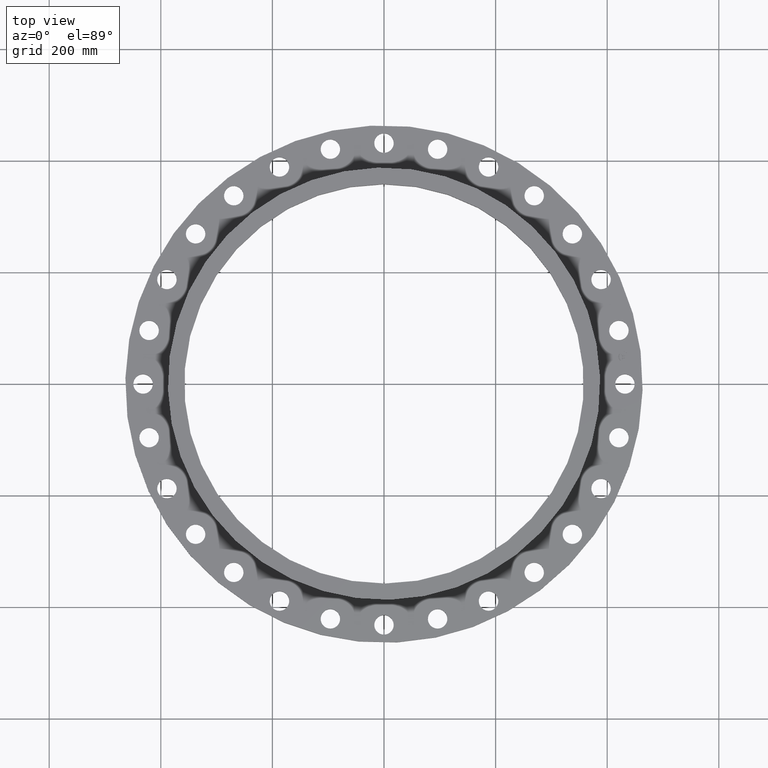
[diagram: clean part render]
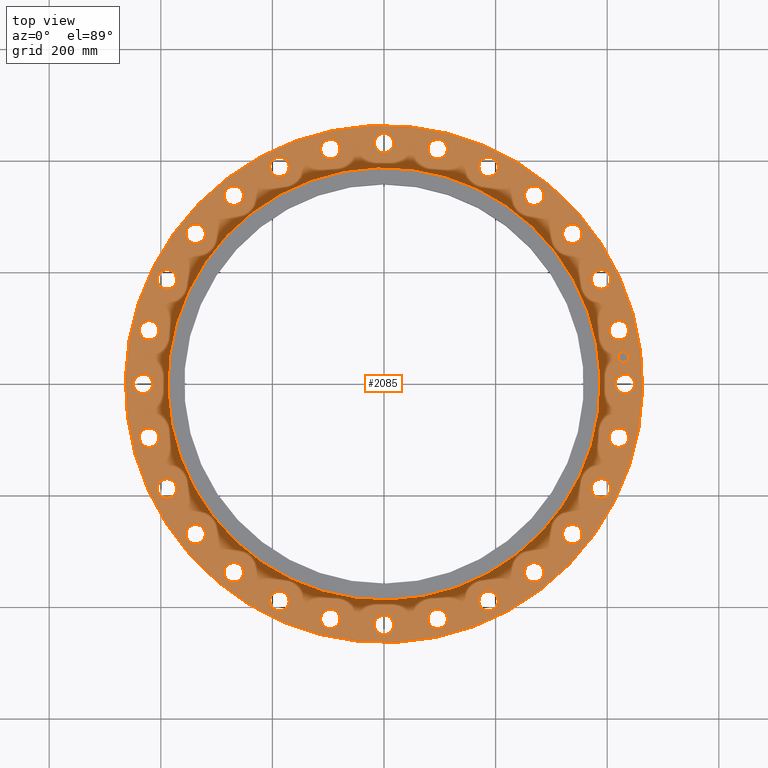
[diagram: same view with one face highlighted and labeled with its STEP entity id]
A machine part, top view. The second image highlights one B-rep face of the part: STEP entity #2085.
In plain terms, the highlighted planar face has unit normal (0, 0, 1).
Its self-contained STEP definition (entity closure, byte-faithful):
#65=AXIS2_PLACEMENT_3D('Circle Axis2P3D',#63,#64,$) ;
#82=AXIS2_PLACEMENT_3D('Circle Axis2P3D',#80,#81,$) ;
#108=AXIS2_PLACEMENT_3D('Circle Axis2P3D',#106,#107,$) ;
#134=AXIS2_PLACEMENT_3D('Circle Axis2P3D',#132,#133,$) ;
#255=AXIS2_PLACEMENT_3D('Circle Axis2P3D',#253,#254,$) ;
#267=AXIS2_PLACEMENT_3D('Circle Axis2P3D',#265,#266,$) ;
#802=AXIS2_PLACEMENT_3D('Circle Axis2P3D',#800,#801,$) ;
#814=AXIS2_PLACEMENT_3D('Circle Axis2P3D',#812,#813,$) ;
#845=AXIS2_PLACEMENT_3D('Circle Axis2P3D',#843,#844,$) ;
#857=AXIS2_PLACEMENT_3D('Circle Axis2P3D',#855,#856,$) ;
#888=AXIS2_PLACEMENT_3D('Circle Axis2P3D',#886,#887,$) ;
#900=AXIS2_PLACEMENT_3D('Circle Axis2P3D',#898,#899,$) ;
#931=AXIS2_PLACEMENT_3D('Circle Axis2P3D',#929,#930,$) ;
#943=AXIS2_PLACEMENT_3D('Circle Axis2P3D',#941,#942,$) ;
#974=AXIS2_PLACEMENT_3D('Circle Axis2P3D',#972,#973,$) ;
#986=AXIS2_PLACEMENT_3D('Circle Axis2P3D',#984,#985,$) ;
#1017=AXIS2_PLACEMENT_3D('Circle Axis2P3D',#1015,#1016,$) ;
#1029=AXIS2_PLACEMENT_3D('Circle Axis2P3D',#1027,#1028,$) ;
#1060=AXIS2_PLACEMENT_3D('Circle Axis2P3D',#1058,#1059,$) ;
#1072=AXIS2_PLACEMENT_3D('Circle Axis2P3D',#1070,#1071,$) ;
#1103=AXIS2_PLACEMENT_3D('Circle Axis2P3D',#1101,#1102,$) ;
#1115=AXIS2_PLACEMENT_3D('Circle Axis2P3D',#1113,#1114,$) ;
#1146=AXIS2_PLACEMENT_3D('Circle Axis2P3D',#1144,#1145,$) ;
#1158=AXIS2_PLACEMENT_3D('Circle Axis2P3D',#1156,#1157,$) ;
#1189=AXIS2_PLACEMENT_3D('Circle Axis2P3D',#1187,#1188,$) ;
#1201=AXIS2_PLACEMENT_3D('Circle Axis2P3D',#1199,#1200,$) ;
#1232=AXIS2_PLACEMENT_3D('Circle Axis2P3D',#1230,#1231,$) ;
#1244=AXIS2_PLACEMENT_3D('Circle Axis2P3D',#1242,#1243,$) ;
#1275=AXIS2_PLACEMENT_3D('Circle Axis2P3D',#1273,#1274,$) ;
#1287=AXIS2_PLACEMENT_3D('Circle Axis2P3D',#1285,#1286,$) ;
#1318=AXIS2_PLACEMENT_3D('Circle Axis2P3D',#1316,#1317,$) ;
#1330=AXIS2_PLACEMENT_3D('Circle Axis2P3D',#1328,#1329,$) ;
#1361=AXIS2_PLACEMENT_3D('Circle Axis2P3D',#1359,#1360,$) ;
#1373=AXIS2_PLACEMENT_3D('Circle Axis2P3D',#1371,#1372,$) ;
#1404=AXIS2_PLACEMENT_3D('Circle Axis2P3D',#1402,#1403,$) ;
#1416=AXIS2_PLACEMENT_3D('Circle Axis2P3D',#1414,#1415,$) ;
#1447=AXIS2_PLACEMENT_3D('Circle Axis2P3D',#1445,#1446,$) ;
#1459=AXIS2_PLACEMENT_3D('Circle Axis2P3D',#1457,#1458,$) ;
#1490=AXIS2_PLACEMENT_3D('Circle Axis2P3D',#1488,#1489,$) ;
#1502=AXIS2_PLACEMENT_3D('Circle Axis2P3D',#1500,#1501,$) ;
#1533=AXIS2_PLACEMENT_3D('Circle Axis2P3D',#1531,#1532,$) ;
#1545=AXIS2_PLACEMENT_3D('Circle Axis2P3D',#1543,#1544,$) ;
#1576=AXIS2_PLACEMENT_3D('Circle Axis2P3D',#1574,#1575,$) ;
#1588=AXIS2_PLACEMENT_3D('Circle Axis2P3D',#1586,#1587,$) ;
#1619=AXIS2_PLACEMENT_3D('Circle Axis2P3D',#1617,#1618,$) ;
#1631=AXIS2_PLACEMENT_3D('Circle Axis2P3D',#1629,#1630,$) ;
#1662=AXIS2_PLACEMENT_3D('Circle Axis2P3D',#1660,#1661,$) ;
#1674=AXIS2_PLACEMENT_3D('Circle Axis2P3D',#1672,#1673,$) ;
#1705=AXIS2_PLACEMENT_3D('Circle Axis2P3D',#1703,#1704,$) ;
#1717=AXIS2_PLACEMENT_3D('Circle Axis2P3D',#1715,#1716,$) ;
#1748=AXIS2_PLACEMENT_3D('Circle Axis2P3D',#1746,#1747,$) ;
#1760=AXIS2_PLACEMENT_3D('Circle Axis2P3D',#1758,#1759,$) ;
#1791=AXIS2_PLACEMENT_3D('Circle Axis2P3D',#1789,#1790,$) ;
#1803=AXIS2_PLACEMENT_3D('Circle Axis2P3D',#1801,#1802,$) ;
#1834=AXIS2_PLACEMENT_3D('Circle Axis2P3D',#1832,#1833,$) ;
#1846=AXIS2_PLACEMENT_3D('Circle Axis2P3D',#1844,#1845,$) ;
#1877=AXIS2_PLACEMENT_3D('Circle Axis2P3D',#1875,#1876,$) ;
#1889=AXIS2_PLACEMENT_3D('Circle Axis2P3D',#1887,#1888,$) ;
#1920=AXIS2_PLACEMENT_3D('Circle Axis2P3D',#1918,#1919,$) ;
#1932=AXIS2_PLACEMENT_3D('Circle Axis2P3D',#1930,#1931,$) ;
#1945=AXIS2_PLACEMENT_3D('Plane Axis2P3D',#1942,#1943,#1944) ;
#2069=AXIS2_PLACEMENT_3D('Circle Axis2P3D',#2067,#2068,$) ;
#2078=AXIS2_PLACEMENT_3D('Circle Axis2P3D',#2076,#2077,$) ;
#46=CARTESIAN_POINT('Vertex',(16.3966619888,0.329605057792,1.)) ;
#60=CARTESIAN_POINT('Vertex',(17.6033380114,-0.329605057792,1.)) ;
#63=CARTESIAN_POINT('Axis2P3D Location',(17.0000000001,0.,1.)) ;
#80=CARTESIAN_POINT('Axis2P3D Location',(17.0000000001,0.,1.)) ;
#103=CARTESIAN_POINT('Vertex',(-8.74951607956,16.0158817546,1.)) ;
#106=CARTESIAN_POINT('Axis2P3D Location',(0.,0.,1.)) ;
#110=CARTESIAN_POINT('Vertex',(8.74951607956,-16.0158817546,1.)) ;
#132=CARTESIAN_POINT('Axis2P3D Location',(0.,0.,1.)) ;
#243=CARTESIAN_POINT('Vertex',(-7.31123946374,13.3831340689,1.)) ;
#250=CARTESIAN_POINT('Vertex',(7.31123946374,-13.3831340689,1.)) ;
#253=CARTESIAN_POINT('Axis2P3D Location',(0.,0.,1.)) ;
#265=CARTESIAN_POINT('Axis2P3D Location',(0.,0.,1.)) ;
#790=CARTESIAN_POINT('Vertex',(15.9122194142,3.96994171034,1.)) ;
#797=CARTESIAN_POINT('Vertex',(17.2353296002,3.5957700442,1.)) ;
#800=CARTESIAN_POINT('Axis2P3D Location',(16.5737745072,3.78285587727,1.)) ;
#812=CARTESIAN_POINT('Axis2P3D Location',(16.5737745072,3.78285587727,1.)) ;
#833=CARTESIAN_POINT('Vertex',(14.6298717145,7.41120890851,1.)) ;
#840=CARTESIAN_POINT('Vertex',(16.0030697943,7.34083822155,1.)) ;
#843=CARTESIAN_POINT('Axis2P3D Location',(15.3164707544,7.37602356503,1.)) ;
#855=CARTESIAN_POINT('Axis2P3D Location',(15.3164707544,7.37602356503,1.)) ;
#876=CARTESIAN_POINT('Vertex',(12.613921158,10.4808471455,1.)) ;
#883=CARTESIAN_POINT('Vertex',(13.968349246,10.7178061178,1.)) ;
#886=CARTESIAN_POINT('Axis2P3D Location',(13.291135202,10.5993266316,1.)) ;
#898=CARTESIAN_POINT('Axis2P3D Location',(13.291135202,10.5993266316,1.)) ;
#919=CARTESIAN_POINT('Vertex',(9.96545592356,13.0249319424,1.)) ;
#926=CARTESIAN_POINT('Vertex',(11.2331973397,13.5573384616,1.)) ;
#929=CARTESIAN_POINT('Axis2P3D Location',(10.5993266316,13.291135202,1.)) ;
#941=CARTESIAN_POINT('Axis2P3D Location',(10.5993266316,13.291135202,1.)) ;
#962=CARTESIAN_POINT('Vertex',(6.81728111696,14.9158922643,1.)) ;
#969=CARTESIAN_POINT('Vertex',(7.9347660131,15.7170492445,1.)) ;
#972=CARTESIAN_POINT('Axis2P3D Location',(7.37602356503,15.3164707544,1.)) ;
#984=CARTESIAN_POINT('Axis2P3D Location',(7.37602356503,15.3164707544,1.)) ;
#1005=CARTESIAN_POINT('Vertex',(3.32725936867,16.0589074648,1.)) ;
#1012=CARTESIAN_POINT('Vertex',(4.23845238588,17.0886415496,1.)) ;
#1015=CARTESIAN_POINT('Axis2P3D Location',(3.78285587727,16.5737745072,1.)) ;
#1027=CARTESIAN_POINT('Axis2P3D Location',(3.78285587727,16.5737745072,1.)) ;
#1048=CARTESIAN_POINT('Vertex',(-0.329605057792,16.3966619888,1.)) ;
#1055=CARTESIAN_POINT('Vertex',(0.329605057792,17.6033380114,1.)) ;
#1058=CARTESIAN_POINT('Axis2P3D Location',(2.57777818661E-015,17.0000000001,1.)) ;
#1070=CARTESIAN_POINT('Axis2P3D Location',(2.57777818661E-015,17.0000000001,1.)) ;
#1091=CARTESIAN_POINT('Vertex',(-3.96994171034,15.9122194142,1.)) ;
#1098=CARTESIAN_POINT('Vertex',(-3.5957700442,17.2353296002,1.)) ;
#1101=CARTESIAN_POINT('Axis2P3D Location',(-3.78285587727,16.5737745072,1.)) ;
#1113=CARTESIAN_POINT('Axis2P3D Location',(-3.78285587727,16.5737745072,1.)) ;
#1134=CARTESIAN_POINT('Vertex',(-7.41120890851,14.6298717145,1.)) ;
#1141=CARTESIAN_POINT('Vertex',(-7.34083822155,16.0030697943,1.)) ;
#1144=CARTESIAN_POINT('Axis2P3D Location',(-7.37602356503,15.3164707544,1.)) ;
#1156=CARTESIAN_POINT('Axis2P3D Location',(-7.37602356503,15.3164707544,1.)) ;
#1177=CARTESIAN_POINT('Vertex',(-10.4808471455,12.613921158,1.)) ;
#1184=CARTESIAN_POINT('Vertex',(-10.7178061178,13.968349246,1.)) ;
#1187=CARTESIAN_POINT('Axis2P3D Location',(-10.5993266316,13.291135202,1.)) ;
#1199=CARTESIAN_POINT('Axis2P3D Location',(-10.5993266316,13.291135202,1.)) ;
#1220=CARTESIAN_POINT('Vertex',(-13.0249319424,9.96545592356,1.)) ;
#1227=CARTESIAN_POINT('Vertex',(-13.5573384616,11.2331973397,1.)) ;
#1230=CARTESIAN_POINT('Axis2P3D Location',(-13.291135202,10.5993266316,1.)) ;
#1242=CARTESIAN_POINT('Axis2P3D Location',(-13.291135202,10.5993266316,1.)) ;
#1263=CARTESIAN_POINT('Vertex',(-14.9158922643,6.81728111696,1.)) ;
#1270=CARTESIAN_POINT('Vertex',(-15.7170492445,7.9347660131,1.)) ;
#1273=CARTESIAN_POINT('Axis2P3D Location',(-15.3164707544,7.37602356503,1.)) ;
#1285=CARTESIAN_POINT('Axis2P3D Location',(-15.3164707544,7.37602356503,1.)) ;
#1306=CARTESIAN_POINT('Vertex',(-16.0589074648,3.32725936867,1.)) ;
#1313=CARTESIAN_POINT('Vertex',(-17.0886415496,4.23845238588,1.)) ;
#1316=CARTESIAN_POINT('Axis2P3D Location',(-16.5737745072,3.78285587727,1.)) ;
#1328=CARTESIAN_POINT('Axis2P3D Location',(-16.5737745072,3.78285587727,1.)) ;
#1349=CARTESIAN_POINT('Vertex',(-16.3966619888,-0.329605057792,1.)) ;
#1356=CARTESIAN_POINT('Vertex',(-17.6033380114,0.329605057792,1.)) ;
#1359=CARTESIAN_POINT('Axis2P3D Location',(-17.0000000001,9.63141612604E-015,1.)) ;
#1371=CARTESIAN_POINT('Axis2P3D Location',(-17.0000000001,9.63141612604E-015,1.)) ;
#1392=CARTESIAN_POINT('Vertex',(-15.9122194142,-3.96994171034,1.)) ;
#1399=CARTESIAN_POINT('Vertex',(-17.2353296002,-3.5957700442,1.)) ;
#1402=CARTESIAN_POINT('Axis2P3D Location',(-16.5737745072,-3.78285587727,1.)) ;
#1414=CARTESIAN_POINT('Axis2P3D Location',(-16.5737745072,-3.78285587727,1.)) ;
#1435=CARTESIAN_POINT('Vertex',(-14.6298717145,-7.41120890851,1.)) ;
#1442=CARTESIAN_POINT('Vertex',(-16.0030697943,-7.34083822155,1.)) ;
#1445=CARTESIAN_POINT('Axis2P3D Location',(-15.3164707544,-7.37602356503,1.)) ;
#1457=CARTESIAN_POINT('Axis2P3D Location',(-15.3164707544,-7.37602356503,1.)) ;
#1478=CARTESIAN_POINT('Vertex',(-12.613921158,-10.4808471455,1.)) ;
#1485=CARTESIAN_POINT('Vertex',(-13.968349246,-10.7178061178,1.)) ;
#1488=CARTESIAN_POINT('Axis2P3D Location',(-13.291135202,-10.5993266316,1.)) ;
#1500=CARTESIAN_POINT('Axis2P3D Location',(-13.291135202,-10.5993266316,1.)) ;
#1521=CARTESIAN_POINT('Vertex',(-9.96545592356,-13.0249319424,1.)) ;
#1528=CARTESIAN_POINT('Vertex',(-11.2331973397,-13.5573384616,1.)) ;
#1531=CARTESIAN_POINT('Axis2P3D Location',(-10.5993266316,-13.291135202,1.)) ;
#1543=CARTESIAN_POINT('Axis2P3D Location',(-10.5993266316,-13.291135202,1.)) ;
#1564=CARTESIAN_POINT('Vertex',(-6.81728111696,-14.9158922643,1.)) ;
#1571=CARTESIAN_POINT('Vertex',(-7.9347660131,-15.7170492445,1.)) ;
#1574=CARTESIAN_POINT('Axis2P3D Location',(-7.37602356503,-15.3164707544,1.)) ;
#1586=CARTESIAN_POINT('Axis2P3D Location',(-7.37602356503,-15.3164707544,1.)) ;
#1607=CARTESIAN_POINT('Vertex',(-3.32725936867,-16.0589074648,1.)) ;
#1614=CARTESIAN_POINT('Vertex',(-4.23845238588,-17.0886415496,1.)) ;
#1617=CARTESIAN_POINT('Axis2P3D Location',(-3.78285587727,-16.5737745072,1.)) ;
#1629=CARTESIAN_POINT('Axis2P3D Location',(-3.78285587727,-16.5737745072,1.)) ;
#1650=CARTESIAN_POINT('Vertex',(0.329605057792,-16.3966619888,1.)) ;
#1657=CARTESIAN_POINT('Vertex',(-0.329605057792,-17.6033380114,1.)) ;
#1660=CARTESIAN_POINT('Axis2P3D Location',(-8.84919461428E-016,-17.0000000001,1.)) ;
#1672=CARTESIAN_POINT('Axis2P3D Location',(-8.84919461428E-016,-17.0000000001,1.)) ;
#1693=CARTESIAN_POINT('Vertex',(3.96994171034,-15.9122194142,1.)) ;
#1700=CARTESIAN_POINT('Vertex',(3.5957700442,-17.2353296002,1.)) ;
#1703=CARTESIAN_POINT('Axis2P3D Location',(3.78285587727,-16.5737745072,1.)) ;
#1715=CARTESIAN_POINT('Axis2P3D Location',(3.78285587727,-16.5737745072,1.)) ;
#1736=CARTESIAN_POINT('Vertex',(7.41120890851,-14.6298717145,1.)) ;
#1743=CARTESIAN_POINT('Vertex',(7.34083822155,-16.0030697943,1.)) ;
#1746=CARTESIAN_POINT('Axis2P3D Location',(7.37602356503,-15.3164707544,1.)) ;
#1758=CARTESIAN_POINT('Axis2P3D Location',(7.37602356503,-15.3164707544,1.)) ;
#1779=CARTESIAN_POINT('Vertex',(10.4808471455,-12.613921158,1.)) ;
#1786=CARTESIAN_POINT('Vertex',(10.7178061178,-13.968349246,1.)) ;
#1789=CARTESIAN_POINT('Axis2P3D Location',(10.5993266316,-13.291135202,1.)) ;
#1801=CARTESIAN_POINT('Axis2P3D Location',(10.5993266316,-13.291135202,1.)) ;
#1822=CARTESIAN_POINT('Vertex',(13.0249319424,-9.96545592356,1.)) ;
#1829=CARTESIAN_POINT('Vertex',(13.5573384616,-11.2331973397,1.)) ;
#1832=CARTESIAN_POINT('Axis2P3D Location',(13.291135202,-10.5993266316,1.)) ;
#1844=CARTESIAN_POINT('Axis2P3D Location',(13.291135202,-10.5993266316,1.)) ;
#1865=CARTESIAN_POINT('Vertex',(14.9158922643,-6.81728111696,1.)) ;
#1872=CARTESIAN_POINT('Vertex',(15.7170492445,-7.9347660131,1.)) ;
#1875=CARTESIAN_POINT('Axis2P3D Location',(15.3164707544,-7.37602356503,1.)) ;
#1887=CARTESIAN_POINT('Axis2P3D Location',(15.3164707544,-7.37602356503,1.)) ;
#1908=CARTESIAN_POINT('Vertex',(16.0589074648,-3.32725936867,1.)) ;
#1915=CARTESIAN_POINT('Vertex',(17.0886415496,-4.23845238588,1.)) ;
#1918=CARTESIAN_POINT('Axis2P3D Location',(16.5737745072,-3.78285587727,1.)) ;
#1930=CARTESIAN_POINT('Axis2P3D Location',(16.5737745072,-3.78285587727,1.)) ;
#1942=CARTESIAN_POINT('Axis2P3D Location',(0.,15.2500000001,1.)) ;
#2067=CARTESIAN_POINT('Axis2P3D Location',(16.8931075683,1.90339609376,1.)) ;
#2071=CARTESIAN_POINT('Vertex',(16.8511208897,2.27603817248,1.)) ;
#2073=CARTESIAN_POINT('Vertex',(16.9350942468,1.53075401505,1.)) ;
#2076=CARTESIAN_POINT('Axis2P3D Location',(16.8931075683,1.90339609376,1.)) ;
#64=DIRECTION('Axis2P3D Direction',(0.,-0.,-0.0393700787402)) ;
#81=DIRECTION('Axis2P3D Direction',(0.,-0.,-0.0393700787402)) ;
#107=DIRECTION('Axis2P3D Direction',(0.,0.,0.0393700787402)) ;
#133=DIRECTION('Axis2P3D Direction',(0.,0.,0.0393700787402)) ;
#254=DIRECTION('Axis2P3D Direction',(0.,0.,0.0393700787402)) ;
#266=DIRECTION('Axis2P3D Direction',(0.,0.,0.0393700787402)) ;
#801=DIRECTION('Axis2P3D Direction',(0.,0.,-0.0393700787402)) ;
#813=DIRECTION('Axis2P3D Direction',(0.,0.,-0.0393700787402)) ;
#844=DIRECTION('Axis2P3D Direction',(0.,0.,-0.0393700787402)) ;
#856=DIRECTION('Axis2P3D Direction',(0.,0.,-0.0393700787402)) ;
#887=DIRECTION('Axis2P3D Direction',(0.,0.,-0.0393700787402)) ;
#899=DIRECTION('Axis2P3D Direction',(0.,0.,-0.0393700787402)) ;
#930=DIRECTION('Axis2P3D Direction',(0.,0.,-0.0393700787402)) ;
#942=DIRECTION('Axis2P3D Direction',(0.,0.,-0.0393700787402)) ;
#973=DIRECTION('Axis2P3D Direction',(0.,0.,-0.0393700787402)) ;
#985=DIRECTION('Axis2P3D Direction',(0.,0.,-0.0393700787402)) ;
#1016=DIRECTION('Axis2P3D Direction',(0.,0.,-0.0393700787402)) ;
#1028=DIRECTION('Axis2P3D Direction',(0.,0.,-0.0393700787402)) ;
#1059=DIRECTION('Axis2P3D Direction',(0.,0.,-0.0393700787402)) ;
#1071=DIRECTION('Axis2P3D Direction',(0.,0.,-0.0393700787402)) ;
#1102=DIRECTION('Axis2P3D Direction',(0.,0.,-0.0393700787402)) ;
#1114=DIRECTION('Axis2P3D Direction',(0.,0.,-0.0393700787402)) ;
#1145=DIRECTION('Axis2P3D Direction',(0.,0.,-0.0393700787402)) ;
#1157=DIRECTION('Axis2P3D Direction',(0.,0.,-0.0393700787402)) ;
#1188=DIRECTION('Axis2P3D Direction',(0.,0.,-0.0393700787402)) ;
#1200=DIRECTION('Axis2P3D Direction',(0.,0.,-0.0393700787402)) ;
#1231=DIRECTION('Axis2P3D Direction',(0.,0.,-0.0393700787402)) ;
#1243=DIRECTION('Axis2P3D Direction',(0.,0.,-0.0393700787402)) ;
#1274=DIRECTION('Axis2P3D Direction',(0.,0.,-0.0393700787402)) ;
#1286=DIRECTION('Axis2P3D Direction',(0.,0.,-0.0393700787402)) ;
#1317=DIRECTION('Axis2P3D Direction',(0.,0.,-0.0393700787402)) ;
#1329=DIRECTION('Axis2P3D Direction',(0.,0.,-0.0393700787402)) ;
#1360=DIRECTION('Axis2P3D Direction',(0.,0.,-0.0393700787402)) ;
#1372=DIRECTION('Axis2P3D Direction',(0.,0.,-0.0393700787402)) ;
#1403=DIRECTION('Axis2P3D Direction',(-0.,0.,-0.0393700787402)) ;
#1415=DIRECTION('Axis2P3D Direction',(-0.,0.,-0.0393700787402)) ;
#1446=DIRECTION('Axis2P3D Direction',(-0.,0.,-0.0393700787402)) ;
#1458=DIRECTION('Axis2P3D Direction',(-0.,0.,-0.0393700787402)) ;
#1489=DIRECTION('Axis2P3D Direction',(-0.,0.,-0.0393700787402)) ;
#1501=DIRECTION('Axis2P3D Direction',(-0.,0.,-0.0393700787402)) ;
#1532=DIRECTION('Axis2P3D Direction',(-0.,0.,-0.0393700787402)) ;
#1544=DIRECTION('Axis2P3D Direction',(-0.,0.,-0.0393700787402)) ;
#1575=DIRECTION('Axis2P3D Direction',(-0.,0.,-0.0393700787402)) ;
#1587=DIRECTION('Axis2P3D Direction',(-0.,0.,-0.0393700787402)) ;
#1618=DIRECTION('Axis2P3D Direction',(-0.,0.,-0.0393700787402)) ;
#1630=DIRECTION('Axis2P3D Direction',(-0.,0.,-0.0393700787402)) ;
#1661=DIRECTION('Axis2P3D Direction',(-0.,0.,-0.0393700787402)) ;
#1673=DIRECTION('Axis2P3D Direction',(-0.,0.,-0.0393700787402)) ;
#1704=DIRECTION('Axis2P3D Direction',(0.,-0.,-0.0393700787402)) ;
#1716=DIRECTION('Axis2P3D Direction',(0.,-0.,-0.0393700787402)) ;
#1747=DIRECTION('Axis2P3D Direction',(0.,-0.,-0.0393700787402)) ;
#1759=DIRECTION('Axis2P3D Direction',(0.,-0.,-0.0393700787402)) ;
#1790=DIRECTION('Axis2P3D Direction',(0.,-0.,-0.0393700787402)) ;
#1802=DIRECTION('Axis2P3D Direction',(0.,-0.,-0.0393700787402)) ;
#1833=DIRECTION('Axis2P3D Direction',(0.,-0.,-0.0393700787402)) ;
#1845=DIRECTION('Axis2P3D Direction',(0.,-0.,-0.0393700787402)) ;
#1876=DIRECTION('Axis2P3D Direction',(0.,-0.,-0.0393700787402)) ;
#1888=DIRECTION('Axis2P3D Direction',(0.,-0.,-0.0393700787402)) ;
#1919=DIRECTION('Axis2P3D Direction',(0.,-0.,-0.0393700787402)) ;
#1931=DIRECTION('Axis2P3D Direction',(0.,-0.,-0.0393700787402)) ;
#1943=DIRECTION('Axis2P3D Direction',(0.,0.,0.0393700787402)) ;
#1944=DIRECTION('Axis2P3D XDirection',(0.0393700787402,0.,0.)) ;
#2068=DIRECTION('Axis2P3D Direction',(0.,0.,0.0393700787402)) ;
#2077=DIRECTION('Axis2P3D Direction',(0.,0.,0.0393700787402)) ;
#1948=ORIENTED_EDGE('',*,*,#112,.T.) ;
#1949=ORIENTED_EDGE('',*,*,#136,.T.) ;
#1952=ORIENTED_EDGE('',*,*,#84,.F.) ;
#1953=ORIENTED_EDGE('',*,*,#67,.F.) ;
#1956=ORIENTED_EDGE('',*,*,#269,.F.) ;
#1957=ORIENTED_EDGE('',*,*,#257,.F.) ;
#1960=ORIENTED_EDGE('',*,*,#804,.F.) ;
#1961=ORIENTED_EDGE('',*,*,#816,.F.) ;
#1964=ORIENTED_EDGE('',*,*,#847,.F.) ;
#1965=ORIENTED_EDGE('',*,*,#859,.F.) ;
#1968=ORIENTED_EDGE('',*,*,#890,.F.) ;
#1969=ORIENTED_EDGE('',*,*,#902,.F.) ;
#1972=ORIENTED_EDGE('',*,*,#933,.F.) ;
#1973=ORIENTED_EDGE('',*,*,#945,.F.) ;
#1976=ORIENTED_EDGE('',*,*,#976,.F.) ;
#1977=ORIENTED_EDGE('',*,*,#988,.F.) ;
#1980=ORIENTED_EDGE('',*,*,#1019,.F.) ;
#1981=ORIENTED_EDGE('',*,*,#1031,.F.) ;
#1984=ORIENTED_EDGE('',*,*,#1062,.F.) ;
#1985=ORIENTED_EDGE('',*,*,#1074,.F.) ;
#1988=ORIENTED_EDGE('',*,*,#1105,.F.) ;
#1989=ORIENTED_EDGE('',*,*,#1117,.F.) ;
#1992=ORIENTED_EDGE('',*,*,#1148,.F.) ;
#1993=ORIENTED_EDGE('',*,*,#1160,.F.) ;
#1996=ORIENTED_EDGE('',*,*,#1191,.F.) ;
#1997=ORIENTED_EDGE('',*,*,#1203,.F.) ;
#2000=ORIENTED_EDGE('',*,*,#1234,.F.) ;
#2001=ORIENTED_EDGE('',*,*,#1246,.F.) ;
#2004=ORIENTED_EDGE('',*,*,#1277,.F.) ;
#2005=ORIENTED_EDGE('',*,*,#1289,.F.) ;
#2008=ORIENTED_EDGE('',*,*,#1320,.F.) ;
#2009=ORIENTED_EDGE('',*,*,#1332,.F.) ;
#2012=ORIENTED_EDGE('',*,*,#1363,.F.) ;
#2013=ORIENTED_EDGE('',*,*,#1375,.F.) ;
#2016=ORIENTED_EDGE('',*,*,#1406,.F.) ;
#2017=ORIENTED_EDGE('',*,*,#1418,.F.) ;
#2020=ORIENTED_EDGE('',*,*,#1449,.F.) ;
#2021=ORIENTED_EDGE('',*,*,#1461,.F.) ;
#2024=ORIENTED_EDGE('',*,*,#1492,.F.) ;
#2025=ORIENTED_EDGE('',*,*,#1504,.F.) ;
#2028=ORIENTED_EDGE('',*,*,#1535,.F.) ;
#2029=ORIENTED_EDGE('',*,*,#1547,.F.) ;
#2032=ORIENTED_EDGE('',*,*,#1578,.F.) ;
#2033=ORIENTED_EDGE('',*,*,#1590,.F.) ;
#2036=ORIENTED_EDGE('',*,*,#1621,.F.) ;
#2037=ORIENTED_EDGE('',*,*,#1633,.F.) ;
#2040=ORIENTED_EDGE('',*,*,#1664,.F.) ;
#2041=ORIENTED_EDGE('',*,*,#1676,.F.) ;
#2044=ORIENTED_EDGE('',*,*,#1707,.F.) ;
#2045=ORIENTED_EDGE('',*,*,#1719,.F.) ;
#2048=ORIENTED_EDGE('',*,*,#1750,.F.) ;
#2049=ORIENTED_EDGE('',*,*,#1762,.F.) ;
#2052=ORIENTED_EDGE('',*,*,#1793,.F.) ;
#2053=ORIENTED_EDGE('',*,*,#1805,.F.) ;
#2056=ORIENTED_EDGE('',*,*,#1836,.F.) ;
#2057=ORIENTED_EDGE('',*,*,#1848,.F.) ;
#2060=ORIENTED_EDGE('',*,*,#1879,.F.) ;
#2061=ORIENTED_EDGE('',*,*,#1891,.F.) ;
#2064=ORIENTED_EDGE('',*,*,#1922,.F.) ;
#2065=ORIENTED_EDGE('',*,*,#1934,.F.) ;
#2082=ORIENTED_EDGE('',*,*,#2075,.F.) ;
#2083=ORIENTED_EDGE('',*,*,#2080,.F.) ;
#1954=FACE_BOUND('',#1951,.T.) ;
#1958=FACE_BOUND('',#1955,.T.) ;
#1962=FACE_BOUND('',#1959,.T.) ;
#1966=FACE_BOUND('',#1963,.T.) ;
#1970=FACE_BOUND('',#1967,.T.) ;
#1974=FACE_BOUND('',#1971,.T.) ;
#1978=FACE_BOUND('',#1975,.T.) ;
#1982=FACE_BOUND('',#1979,.T.) ;
#1986=FACE_BOUND('',#1983,.T.) ;
#1990=FACE_BOUND('',#1987,.T.) ;
#1994=FACE_BOUND('',#1991,.T.) ;
#1998=FACE_BOUND('',#1995,.T.) ;
#2002=FACE_BOUND('',#1999,.T.) ;
#2006=FACE_BOUND('',#2003,.T.) ;
#2010=FACE_BOUND('',#2007,.T.) ;
#2014=FACE_BOUND('',#2011,.T.) ;
#2018=FACE_BOUND('',#2015,.T.) ;
#2022=FACE_BOUND('',#2019,.T.) ;
#2026=FACE_BOUND('',#2023,.T.) ;
#2030=FACE_BOUND('',#2027,.T.) ;
#2034=FACE_BOUND('',#2031,.T.) ;
#2038=FACE_BOUND('',#2035,.T.) ;
#2042=FACE_BOUND('',#2039,.T.) ;
#2046=FACE_BOUND('',#2043,.T.) ;
#2050=FACE_BOUND('',#2047,.T.) ;
#2054=FACE_BOUND('',#2051,.T.) ;
#2058=FACE_BOUND('',#2055,.T.) ;
#2062=FACE_BOUND('',#2059,.T.) ;
#2066=FACE_BOUND('',#2063,.T.) ;
#2084=FACE_BOUND('',#2081,.T.) ;
#2085=ADVANCED_FACE('PartBody',(#1950,#1954,#1958,#1962,#1966,#1970,#1974,#1978,#1982,#1986,#1990,#1994,#1998,#2002,#2006,#2010,#2014,#2018,#2022,#2026,#2030,#2034,#2038,#2042,#2046,#2050,#2054,#2058,#2062,#2066,#2084),#1946,.T.) ;
#66=CIRCLE('generated circle',#65,0.687500000003) ;
#83=CIRCLE('generated circle',#82,0.687500000003) ;
#109=CIRCLE('generated circle',#108,18.2500000001) ;
#135=CIRCLE('generated circle',#134,18.2500000001) ;
#256=CIRCLE('generated circle',#255,15.2500000001) ;
#268=CIRCLE('generated circle',#267,15.2500000001) ;
#803=CIRCLE('generated circle',#802,0.687500000003) ;
#815=CIRCLE('generated circle',#814,0.687500000003) ;
#846=CIRCLE('generated circle',#845,0.687500000003) ;
#858=CIRCLE('generated circle',#857,0.687500000003) ;
#889=CIRCLE('generated circle',#888,0.687500000003) ;
#901=CIRCLE('generated circle',#900,0.687500000003) ;
#932=CIRCLE('generated circle',#931,0.687500000003) ;
#944=CIRCLE('generated circle',#943,0.687500000003) ;
#975=CIRCLE('generated circle',#974,0.687500000003) ;
#987=CIRCLE('generated circle',#986,0.687500000003) ;
#1018=CIRCLE('generated circle',#1017,0.687500000003) ;
#1030=CIRCLE('generated circle',#1029,0.687500000003) ;
#1061=CIRCLE('generated circle',#1060,0.687500000003) ;
#1073=CIRCLE('generated circle',#1072,0.687500000003) ;
#1104=CIRCLE('generated circle',#1103,0.687500000003) ;
#1116=CIRCLE('generated circle',#1115,0.687500000003) ;
#1147=CIRCLE('generated circle',#1146,0.687500000003) ;
#1159=CIRCLE('generated circle',#1158,0.687500000003) ;
#1190=CIRCLE('generated circle',#1189,0.687500000003) ;
#1202=CIRCLE('generated circle',#1201,0.687500000003) ;
#1233=CIRCLE('generated circle',#1232,0.687500000003) ;
#1245=CIRCLE('generated circle',#1244,0.687500000003) ;
#1276=CIRCLE('generated circle',#1275,0.687500000003) ;
#1288=CIRCLE('generated circle',#1287,0.687500000003) ;
#1319=CIRCLE('generated circle',#1318,0.687500000003) ;
#1331=CIRCLE('generated circle',#1330,0.687500000003) ;
#1362=CIRCLE('generated circle',#1361,0.687500000003) ;
#1374=CIRCLE('generated circle',#1373,0.687500000003) ;
#1405=CIRCLE('generated circle',#1404,0.687500000003) ;
#1417=CIRCLE('generated circle',#1416,0.687500000003) ;
#1448=CIRCLE('generated circle',#1447,0.687500000003) ;
#1460=CIRCLE('generated circle',#1459,0.687500000003) ;
#1491=CIRCLE('generated circle',#1490,0.687500000003) ;
#1503=CIRCLE('generated circle',#1502,0.687500000003) ;
#1534=CIRCLE('generated circle',#1533,0.687500000003) ;
#1546=CIRCLE('generated circle',#1545,0.687500000003) ;
#1577=CIRCLE('generated circle',#1576,0.687500000003) ;
#1589=CIRCLE('generated circle',#1588,0.687500000003) ;
#1620=CIRCLE('generated circle',#1619,0.687500000003) ;
#1632=CIRCLE('generated circle',#1631,0.687500000003) ;
#1663=CIRCLE('generated circle',#1662,0.687500000003) ;
#1675=CIRCLE('generated circle',#1674,0.687500000003) ;
#1706=CIRCLE('generated circle',#1705,0.687500000003) ;
#1718=CIRCLE('generated circle',#1717,0.687500000003) ;
#1749=CIRCLE('generated circle',#1748,0.687500000003) ;
#1761=CIRCLE('generated circle',#1760,0.687500000003) ;
#1792=CIRCLE('generated circle',#1791,0.687500000003) ;
#1804=CIRCLE('generated circle',#1803,0.687500000003) ;
#1835=CIRCLE('generated circle',#1834,0.687500000003) ;
#1847=CIRCLE('generated circle',#1846,0.687500000003) ;
#1878=CIRCLE('generated circle',#1877,0.687500000003) ;
#1890=CIRCLE('generated circle',#1889,0.687500000003) ;
#1921=CIRCLE('generated circle',#1920,0.687500000003) ;
#1933=CIRCLE('generated circle',#1932,0.687500000003) ;
#2070=CIRCLE('generated circle',#2069,0.375000000002) ;
#2079=CIRCLE('generated circle',#2078,0.375000000002) ;
#67=EDGE_CURVE('',#61,#47,#66,.F.) ;
#84=EDGE_CURVE('',#47,#61,#83,.F.) ;
#112=EDGE_CURVE('',#111,#104,#109,.T.) ;
#136=EDGE_CURVE('',#104,#111,#135,.T.) ;
#257=EDGE_CURVE('',#251,#244,#256,.T.) ;
#269=EDGE_CURVE('',#244,#251,#268,.T.) ;
#804=EDGE_CURVE('',#798,#791,#803,.F.) ;
#816=EDGE_CURVE('',#791,#798,#815,.F.) ;
#847=EDGE_CURVE('',#841,#834,#846,.F.) ;
#859=EDGE_CURVE('',#834,#841,#858,.F.) ;
#890=EDGE_CURVE('',#884,#877,#889,.F.) ;
#902=EDGE_CURVE('',#877,#884,#901,.F.) ;
#933=EDGE_CURVE('',#927,#920,#932,.F.) ;
#945=EDGE_CURVE('',#920,#927,#944,.F.) ;
#976=EDGE_CURVE('',#970,#963,#975,.F.) ;
#988=EDGE_CURVE('',#963,#970,#987,.F.) ;
#1019=EDGE_CURVE('',#1013,#1006,#1018,.F.) ;
#1031=EDGE_CURVE('',#1006,#1013,#1030,.F.) ;
#1062=EDGE_CURVE('',#1056,#1049,#1061,.F.) ;
#1074=EDGE_CURVE('',#1049,#1056,#1073,.F.) ;
#1105=EDGE_CURVE('',#1099,#1092,#1104,.F.) ;
#1117=EDGE_CURVE('',#1092,#1099,#1116,.F.) ;
#1148=EDGE_CURVE('',#1142,#1135,#1147,.F.) ;
#1160=EDGE_CURVE('',#1135,#1142,#1159,.F.) ;
#1191=EDGE_CURVE('',#1185,#1178,#1190,.F.) ;
#1203=EDGE_CURVE('',#1178,#1185,#1202,.F.) ;
#1234=EDGE_CURVE('',#1228,#1221,#1233,.F.) ;
#1246=EDGE_CURVE('',#1221,#1228,#1245,.F.) ;
#1277=EDGE_CURVE('',#1271,#1264,#1276,.F.) ;
#1289=EDGE_CURVE('',#1264,#1271,#1288,.F.) ;
#1320=EDGE_CURVE('',#1314,#1307,#1319,.F.) ;
#1332=EDGE_CURVE('',#1307,#1314,#1331,.F.) ;
#1363=EDGE_CURVE('',#1357,#1350,#1362,.F.) ;
#1375=EDGE_CURVE('',#1350,#1357,#1374,.F.) ;
#1406=EDGE_CURVE('',#1400,#1393,#1405,.F.) ;
#1418=EDGE_CURVE('',#1393,#1400,#1417,.F.) ;
#1449=EDGE_CURVE('',#1443,#1436,#1448,.F.) ;
#1461=EDGE_CURVE('',#1436,#1443,#1460,.F.) ;
#1492=EDGE_CURVE('',#1486,#1479,#1491,.F.) ;
#1504=EDGE_CURVE('',#1479,#1486,#1503,.F.) ;
#1535=EDGE_CURVE('',#1529,#1522,#1534,.F.) ;
#1547=EDGE_CURVE('',#1522,#1529,#1546,.F.) ;
#1578=EDGE_CURVE('',#1572,#1565,#1577,.F.) ;
#1590=EDGE_CURVE('',#1565,#1572,#1589,.F.) ;
#1621=EDGE_CURVE('',#1615,#1608,#1620,.F.) ;
#1633=EDGE_CURVE('',#1608,#1615,#1632,.F.) ;
#1664=EDGE_CURVE('',#1658,#1651,#1663,.F.) ;
#1676=EDGE_CURVE('',#1651,#1658,#1675,.F.) ;
#1707=EDGE_CURVE('',#1701,#1694,#1706,.F.) ;
#1719=EDGE_CURVE('',#1694,#1701,#1718,.F.) ;
#1750=EDGE_CURVE('',#1744,#1737,#1749,.F.) ;
#1762=EDGE_CURVE('',#1737,#1744,#1761,.F.) ;
#1793=EDGE_CURVE('',#1787,#1780,#1792,.F.) ;
#1805=EDGE_CURVE('',#1780,#1787,#1804,.F.) ;
#1836=EDGE_CURVE('',#1830,#1823,#1835,.F.) ;
#1848=EDGE_CURVE('',#1823,#1830,#1847,.F.) ;
#1879=EDGE_CURVE('',#1873,#1866,#1878,.F.) ;
#1891=EDGE_CURVE('',#1866,#1873,#1890,.F.) ;
#1922=EDGE_CURVE('',#1916,#1909,#1921,.F.) ;
#1934=EDGE_CURVE('',#1909,#1916,#1933,.F.) ;
#2075=EDGE_CURVE('',#2072,#2074,#2070,.T.) ;
#2080=EDGE_CURVE('',#2074,#2072,#2079,.T.) ;
#1947=EDGE_LOOP('',(#1948,#1949)) ;
#1951=EDGE_LOOP('',(#1952,#1953)) ;
#1955=EDGE_LOOP('',(#1956,#1957)) ;
#1959=EDGE_LOOP('',(#1960,#1961)) ;
#1963=EDGE_LOOP('',(#1964,#1965)) ;
#1967=EDGE_LOOP('',(#1968,#1969)) ;
#1971=EDGE_LOOP('',(#1972,#1973)) ;
#1975=EDGE_LOOP('',(#1976,#1977)) ;
#1979=EDGE_LOOP('',(#1980,#1981)) ;
#1983=EDGE_LOOP('',(#1984,#1985)) ;
#1987=EDGE_LOOP('',(#1988,#1989)) ;
#1991=EDGE_LOOP('',(#1992,#1993)) ;
#1995=EDGE_LOOP('',(#1996,#1997)) ;
#1999=EDGE_LOOP('',(#2000,#2001)) ;
#2003=EDGE_LOOP('',(#2004,#2005)) ;
#2007=EDGE_LOOP('',(#2008,#2009)) ;
#2011=EDGE_LOOP('',(#2012,#2013)) ;
#2015=EDGE_LOOP('',(#2016,#2017)) ;
#2019=EDGE_LOOP('',(#2020,#2021)) ;
#2023=EDGE_LOOP('',(#2024,#2025)) ;
#2027=EDGE_LOOP('',(#2028,#2029)) ;
#2031=EDGE_LOOP('',(#2032,#2033)) ;
#2035=EDGE_LOOP('',(#2036,#2037)) ;
#2039=EDGE_LOOP('',(#2040,#2041)) ;
#2043=EDGE_LOOP('',(#2044,#2045)) ;
#2047=EDGE_LOOP('',(#2048,#2049)) ;
#2051=EDGE_LOOP('',(#2052,#2053)) ;
#2055=EDGE_LOOP('',(#2056,#2057)) ;
#2059=EDGE_LOOP('',(#2060,#2061)) ;
#2063=EDGE_LOOP('',(#2064,#2065)) ;
#2081=EDGE_LOOP('',(#2082,#2083)) ;
#1950=FACE_OUTER_BOUND('',#1947,.T.) ;
#1946=PLANE('',#1945) ;
#47=VERTEX_POINT('',#46) ;
#61=VERTEX_POINT('',#60) ;
#104=VERTEX_POINT('',#103) ;
#111=VERTEX_POINT('',#110) ;
#244=VERTEX_POINT('',#243) ;
#251=VERTEX_POINT('',#250) ;
#791=VERTEX_POINT('',#790) ;
#798=VERTEX_POINT('',#797) ;
#834=VERTEX_POINT('',#833) ;
#841=VERTEX_POINT('',#840) ;
#877=VERTEX_POINT('',#876) ;
#884=VERTEX_POINT('',#883) ;
#920=VERTEX_POINT('',#919) ;
#927=VERTEX_POINT('',#926) ;
#963=VERTEX_POINT('',#962) ;
#970=VERTEX_POINT('',#969) ;
#1006=VERTEX_POINT('',#1005) ;
#1013=VERTEX_POINT('',#1012) ;
#1049=VERTEX_POINT('',#1048) ;
#1056=VERTEX_POINT('',#1055) ;
#1092=VERTEX_POINT('',#1091) ;
#1099=VERTEX_POINT('',#1098) ;
#1135=VERTEX_POINT('',#1134) ;
#1142=VERTEX_POINT('',#1141) ;
#1178=VERTEX_POINT('',#1177) ;
#1185=VERTEX_POINT('',#1184) ;
#1221=VERTEX_POINT('',#1220) ;
#1228=VERTEX_POINT('',#1227) ;
#1264=VERTEX_POINT('',#1263) ;
#1271=VERTEX_POINT('',#1270) ;
#1307=VERTEX_POINT('',#1306) ;
#1314=VERTEX_POINT('',#1313) ;
#1350=VERTEX_POINT('',#1349) ;
#1357=VERTEX_POINT('',#1356) ;
#1393=VERTEX_POINT('',#1392) ;
#1400=VERTEX_POINT('',#1399) ;
#1436=VERTEX_POINT('',#1435) ;
#1443=VERTEX_POINT('',#1442) ;
#1479=VERTEX_POINT('',#1478) ;
#1486=VERTEX_POINT('',#1485) ;
#1522=VERTEX_POINT('',#1521) ;
#1529=VERTEX_POINT('',#1528) ;
#1565=VERTEX_POINT('',#1564) ;
#1572=VERTEX_POINT('',#1571) ;
#1608=VERTEX_POINT('',#1607) ;
#1615=VERTEX_POINT('',#1614) ;
#1651=VERTEX_POINT('',#1650) ;
#1658=VERTEX_POINT('',#1657) ;
#1694=VERTEX_POINT('',#1693) ;
#1701=VERTEX_POINT('',#1700) ;
#1737=VERTEX_POINT('',#1736) ;
#1744=VERTEX_POINT('',#1743) ;
#1780=VERTEX_POINT('',#1779) ;
#1787=VERTEX_POINT('',#1786) ;
#1823=VERTEX_POINT('',#1822) ;
#1830=VERTEX_POINT('',#1829) ;
#1866=VERTEX_POINT('',#1865) ;
#1873=VERTEX_POINT('',#1872) ;
#1909=VERTEX_POINT('',#1908) ;
#1916=VERTEX_POINT('',#1915) ;
#2072=VERTEX_POINT('',#2071) ;
#2074=VERTEX_POINT('',#2073) ;